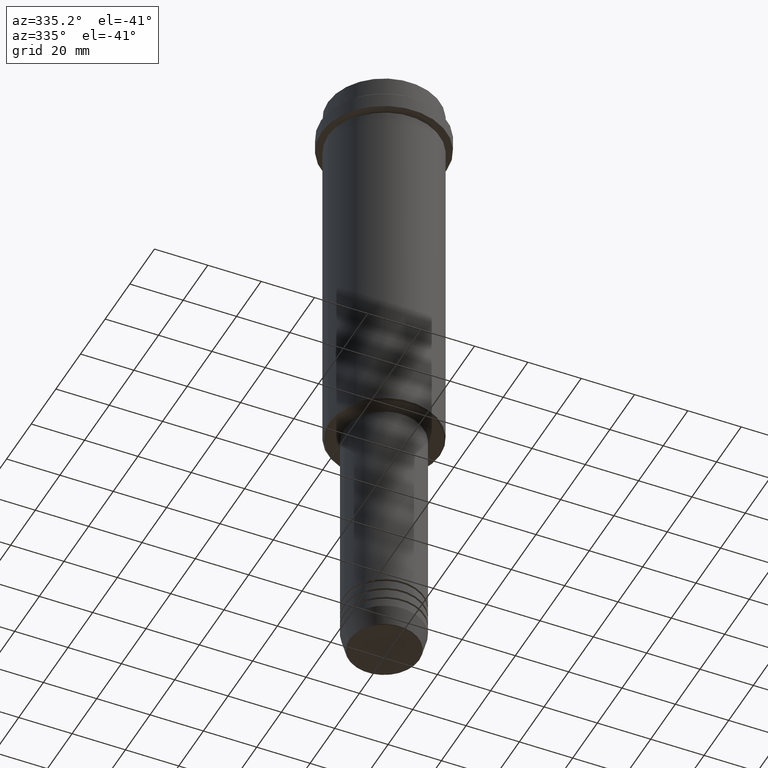
[diagram: clean part render]
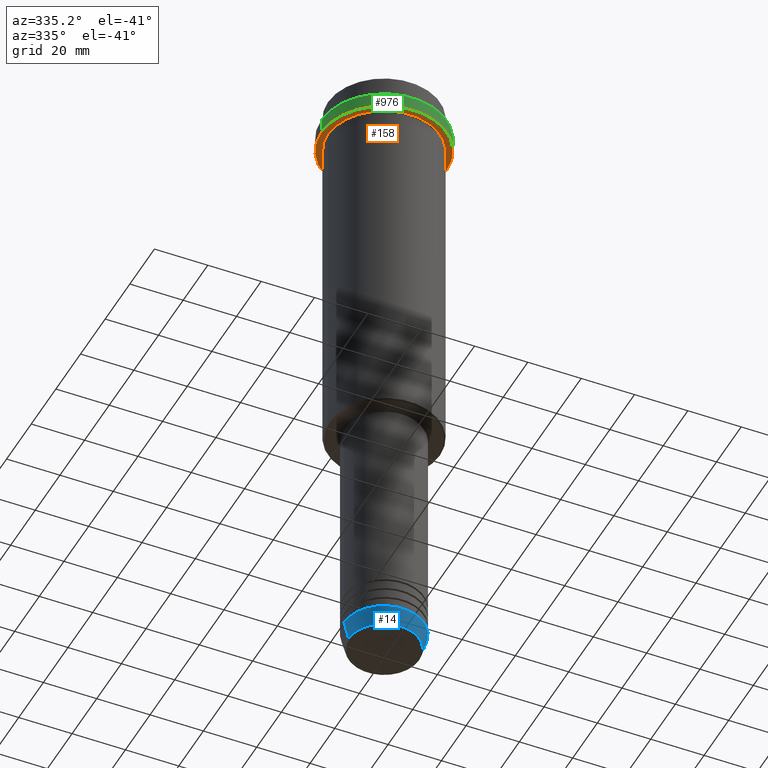
[diagram: same view with three faces highlighted in distinct colors, each labeled with its STEP entity id]
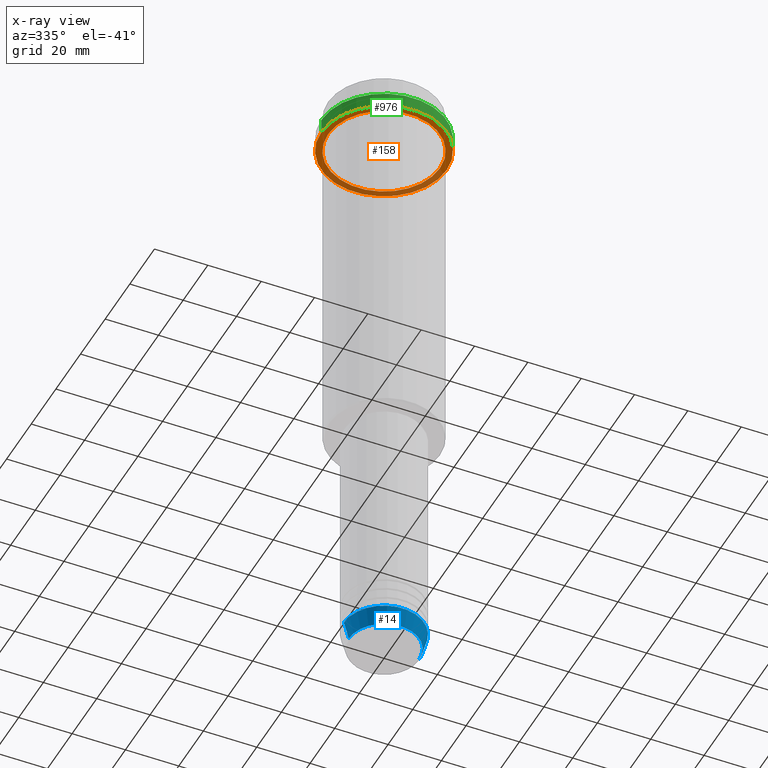
[diagram: x-ray of the same camera — body ghosted, the three highlighted faces saturated]
A machine part, auxiliary view with three faces highlighted in distinct colors.
The next image is the same camera in x-ray (body ghosted, the three faces saturated) — at least one of them is partly hidden behind the body in this view.
Their STEP definitions:

[orange] entity #158 — the highlighted planar face has unit normal (0, 0, -1).
#21 = VERTEX_POINT ( 'NONE', #610 ) ;
#50 = ORIENTED_EDGE ( 'NONE', *, *, #1210, .T. ) ;
#98 = CIRCLE ( 'NONE', #279, 23.50000000000000355 ) ;
#149 = DIRECTION ( 'NONE',  ( -1.000000000000000000, 0.000000000000000000, 0.000000000000000000 ) ) ;
#158 = ADVANCED_FACE ( 'NONE', ( #864, #974 ), #323, .T. ) ;
#222 = DIRECTION ( 'NONE',  ( -1.000000000000000000, 0.000000000000000000, 0.000000000000000000 ) ) ;
#224 = VERTEX_POINT ( 'NONE', #360 ) ;
#279 = AXIS2_PLACEMENT_3D ( 'NONE', #1177, #499, #614 ) ;
#305 = CIRCLE ( 'NONE', #1062, 20.99999999999999289 ) ;
#317 = CARTESIAN_POINT ( 'NONE',  ( 0.000000000000000000, 23.50000000000000355, -15.00000000000000178 ) ) ;
#323 = PLANE ( 'NONE',  #785 ) ;
#360 = CARTESIAN_POINT ( 'NONE',  ( 20.99999999999999289, 2.571758278209440872E-15, -15.00000000000000178 ) ) ;
#367 = CARTESIAN_POINT ( 'NONE',  ( 0.000000000000000000, 0.000000000000000000, -15.00000000000000178 ) ) ;
#429 = DIRECTION ( 'NONE',  ( -0.000000000000000000, -0.000000000000000000, 1.000000000000000000 ) ) ;
#438 = CARTESIAN_POINT ( 'NONE',  ( -20.99999999999999289, 0.000000000000000000, -15.00000000000000178 ) ) ;
#447 = DIRECTION ( 'NONE',  ( -0.000000000000000000, -0.000000000000000000, 1.000000000000000000 ) ) ;
#452 = ORIENTED_EDGE ( 'NONE', *, *, #951, .F. ) ;
#499 = DIRECTION ( 'NONE',  ( -0.000000000000000000, -0.000000000000000000, 1.000000000000000000 ) ) ;
#606 = VERTEX_POINT ( 'NONE', #720 ) ;
#610 = CARTESIAN_POINT ( 'NONE',  ( -23.50000000000000711, 2.877919977996281109E-15, -15.00000000000000000 ) ) ;
#614 = DIRECTION ( 'NONE',  ( 1.000000000000000000, 0.000000000000000000, 0.000000000000000000 ) ) ;
#617 = ORIENTED_EDGE ( 'NONE', *, *, #1145, .F. ) ;
#636 = DIRECTION ( 'NONE',  ( 1.000000000000000000, 0.000000000000000000, 0.000000000000000000 ) ) ;
#681 = EDGE_LOOP ( 'NONE', ( #50, #1392 ) ) ;
#687 = EDGE_CURVE ( 'NONE', #224, #707, #305, .T. ) ;
#707 = VERTEX_POINT ( 'NONE', #438 ) ;
#720 = CARTESIAN_POINT ( 'NONE',  ( 23.50000000000000355, 0.000000000000000000, -15.00000000000000000 ) ) ;
#784 = CIRCLE ( 'NONE', #1377, 23.50000000000000355 ) ;
#785 = AXIS2_PLACEMENT_3D ( 'NONE', #317, #1304, #1117 ) ;
#864 = FACE_BOUND ( 'NONE', #681, .T. ) ;
#906 = AXIS2_PLACEMENT_3D ( 'NONE', #367, #1123, #149 ) ;
#951 = EDGE_CURVE ( 'NONE', #21, #606, #98, .T. ) ;
#974 = FACE_OUTER_BOUND ( 'NONE', #985, .T. ) ;
#985 = EDGE_LOOP ( 'NONE', ( #617, #452 ) ) ;
#1000 = CIRCLE ( 'NONE', #906, 20.99999999999999289 ) ;
#1013 = CARTESIAN_POINT ( 'NONE',  ( 0.000000000000000000, 0.000000000000000000, -15.00000000000000178 ) ) ;
#1062 = AXIS2_PLACEMENT_3D ( 'NONE', #1013, #447, #222 ) ;
#1117 = DIRECTION ( 'NONE',  ( -1.000000000000000000, 0.000000000000000000, -0.000000000000000000 ) ) ;
#1123 = DIRECTION ( 'NONE',  ( -0.000000000000000000, -0.000000000000000000, 1.000000000000000000 ) ) ;
#1145 = EDGE_CURVE ( 'NONE', #606, #21, #784, .T. ) ;
#1177 = CARTESIAN_POINT ( 'NONE',  ( 0.000000000000000000, 0.000000000000000000, -15.00000000000000000 ) ) ;
#1210 = EDGE_CURVE ( 'NONE', #707, #224, #1000, .T. ) ;
#1216 = CARTESIAN_POINT ( 'NONE',  ( 0.000000000000000000, 0.000000000000000000, -15.00000000000000000 ) ) ;
#1304 = DIRECTION ( 'NONE',  ( 0.000000000000000000, 0.000000000000000000, -1.000000000000000000 ) ) ;
#1377 = AXIS2_PLACEMENT_3D ( 'NONE', #1216, #429, #636 ) ;
#1392 = ORIENTED_EDGE ( 'NONE', *, *, #687, .T. ) ;

[blue] entity #14 — the highlighted conical surface has half-angle 15 deg.
#14 = ADVANCED_FACE ( 'NONE', ( #181 ), #953, .T. ) ;
#69 = ORIENTED_EDGE ( 'NONE', *, *, #492, .T. ) ;
#95 = VERTEX_POINT ( 'NONE', #278 ) ;
#108 = ORIENTED_EDGE ( 'NONE', *, *, #1339, .T. ) ;
#111 = DIRECTION ( 'NONE',  ( -0.000000000000000000, -0.000000000000000000, 1.000000000000000000 ) ) ;
#146 = EDGE_CURVE ( 'NONE', #95, #1405, #907, .T. ) ;
#155 = EDGE_LOOP ( 'NONE', ( #206, #69, #108, #208 ) ) ;
#181 = FACE_OUTER_BOUND ( 'NONE', #155, .T. ) ;
#184 = VERTEX_POINT ( 'NONE', #203 ) ;
#186 = DIRECTION ( 'NONE',  ( -0.000000000000000000, -0.000000000000000000, 1.000000000000000000 ) ) ;
#197 = CARTESIAN_POINT ( 'NONE',  ( 0.000000000000000000, 0.000000000000000000, -233.0000000000000000 ) ) ;
#198 = DIRECTION ( 'NONE',  ( 0.2588190451025210725, 0.000000000000000000, 0.9659258262890680902 ) ) ;
#203 = CARTESIAN_POINT ( 'NONE',  ( 13.22365507213719127, 0.000000000000000000, -239.6294095225512706 ) ) ;
#206 = ORIENTED_EDGE ( 'NONE', *, *, #146, .F. ) ;
#208 = ORIENTED_EDGE ( 'NONE', *, *, #251, .F. ) ;
#244 = CARTESIAN_POINT ( 'NONE',  ( -15.00000000000000000, 1.836970198721029589E-15, -233.0000000000000000 ) ) ;
#251 = EDGE_CURVE ( 'NONE', #1405, #473, #575, .T. ) ;
#262 = AXIS2_PLACEMENT_3D ( 'NONE', #197, #111, #1416 ) ;
#278 = CARTESIAN_POINT ( 'NONE',  ( -13.22365507213719127, 1.728200442216588189E-15, -239.6294095225512706 ) ) ;
#329 = AXIS2_PLACEMENT_3D ( 'NONE', #1052, #831, #1251 ) ;
#375 = VECTOR ( 'NONE', #198, 1000.000000000000114 ) ;
#407 = LINE ( 'NONE', #605, #375 ) ;
#473 = VERTEX_POINT ( 'NONE', #1391 ) ;
#492 = EDGE_CURVE ( 'NONE', #95, #184, #862, .T. ) ;
#575 = CIRCLE ( 'NONE', #262, 15.00000000000000000 ) ;
#605 = CARTESIAN_POINT ( 'NONE',  ( 15.00000000000000000, 0.000000000000000000, -233.0000000000000000 ) ) ;
#680 = DIRECTION ( 'NONE',  ( -0.2588190451025210725, 3.169619151431769255E-17, 0.9659258262890680902 ) ) ;
#831 = DIRECTION ( 'NONE',  ( -0.000000000000000000, -0.000000000000000000, 1.000000000000000000 ) ) ;
#834 = VECTOR ( 'NONE', #680, 1000.000000000000114 ) ;
#862 = CIRCLE ( 'NONE', #1044, 13.22365507213719127 ) ;
#907 = LINE ( 'NONE', #244, #834 ) ;
#953 = CONICAL_SURFACE ( 'NONE', #329, 15.00000000000000000, 0.2617993877991497964 ) ;
#1044 = AXIS2_PLACEMENT_3D ( 'NONE', #1283, #186, #1291 ) ;
#1052 = CARTESIAN_POINT ( 'NONE',  ( 0.000000000000000000, 0.000000000000000000, -233.0000000000000000 ) ) ;
#1174 = CARTESIAN_POINT ( 'NONE',  ( -15.00000000000000000, 1.836970198721029589E-15, -233.0000000000000000 ) ) ;
#1251 = DIRECTION ( 'NONE',  ( 1.000000000000000000, 0.000000000000000000, 0.000000000000000000 ) ) ;
#1283 = CARTESIAN_POINT ( 'NONE',  ( 0.000000000000000000, 0.000000000000000000, -239.6294095225512706 ) ) ;
#1291 = DIRECTION ( 'NONE',  ( 1.000000000000000000, 0.000000000000000000, 0.000000000000000000 ) ) ;
#1339 = EDGE_CURVE ( 'NONE', #184, #473, #407, .T. ) ;
#1391 = CARTESIAN_POINT ( 'NONE',  ( 15.00000000000000000, 0.000000000000000000, -233.0000000000000000 ) ) ;
#1405 = VERTEX_POINT ( 'NONE', #1174 ) ;
#1416 = DIRECTION ( 'NONE',  ( 1.000000000000000000, 0.000000000000000000, 0.000000000000000000 ) ) ;

[green] entity #976 — the highlighted cylindrical surface (partial cylindrical patch) has radius 23.5 mm, axis along (-0, -0, 1).
#12 = EDGE_LOOP ( 'NONE', ( #134, #878, #1327, #1389 ) ) ;
#21 = VERTEX_POINT ( 'NONE', #610 ) ;
#30 = CIRCLE ( 'NONE', #506, 23.50000000000000000 ) ;
#85 = DIRECTION ( 'NONE',  ( 1.000000000000000000, 0.000000000000000000, 0.000000000000000000 ) ) ;
#90 = DIRECTION ( 'NONE',  ( -0.000000000000000000, -0.000000000000000000, 1.000000000000000000 ) ) ;
#98 = CIRCLE ( 'NONE', #279, 23.50000000000000355 ) ;
#115 = EDGE_CURVE ( 'NONE', #606, #768, #1163, .T. ) ;
#134 = ORIENTED_EDGE ( 'NONE', *, *, #592, .F. ) ;
#138 = DIRECTION ( 'NONE',  ( 0.000000000000000000, 0.000000000000000000, -1.000000000000000000 ) ) ;
#180 = EDGE_CURVE ( 'NONE', #768, #228, #30, .T. ) ;
#187 = CARTESIAN_POINT ( 'NONE',  ( 23.50000000000000000, 0.000000000000000000, 0.000000000000000000 ) ) ;
#228 = VERTEX_POINT ( 'NONE', #539 ) ;
#279 = AXIS2_PLACEMENT_3D ( 'NONE', #1177, #499, #614 ) ;
#468 = CARTESIAN_POINT ( 'NONE',  ( 23.50000000000000000, 0.000000000000000000, -9.500000000000000000 ) ) ;
#494 = CYLINDRICAL_SURFACE ( 'NONE', #1374, 23.50000000000000000 ) ;
#499 = DIRECTION ( 'NONE',  ( -0.000000000000000000, -0.000000000000000000, 1.000000000000000000 ) ) ;
#506 = AXIS2_PLACEMENT_3D ( 'NONE', #1393, #138, #85 ) ;
#527 = LINE ( 'NONE', #1057, #668 ) ;
#539 = CARTESIAN_POINT ( 'NONE',  ( -23.50000000000000000, 2.877919977996280320E-15, -9.500000000000000000 ) ) ;
#592 = EDGE_CURVE ( 'NONE', #21, #228, #527, .T. ) ;
#599 = VECTOR ( 'NONE', #1150, 1000.000000000000000 ) ;
#606 = VERTEX_POINT ( 'NONE', #720 ) ;
#610 = CARTESIAN_POINT ( 'NONE',  ( -23.50000000000000711, 2.877919977996281109E-15, -15.00000000000000000 ) ) ;
#614 = DIRECTION ( 'NONE',  ( 1.000000000000000000, 0.000000000000000000, 0.000000000000000000 ) ) ;
#631 = CARTESIAN_POINT ( 'NONE',  ( 0.000000000000000000, 0.000000000000000000, 0.000000000000000000 ) ) ;
#668 = VECTOR ( 'NONE', #90, 1000.000000000000000 ) ;
#720 = CARTESIAN_POINT ( 'NONE',  ( 23.50000000000000355, 0.000000000000000000, -15.00000000000000000 ) ) ;
#737 = FACE_OUTER_BOUND ( 'NONE', #12, .T. ) ;
#768 = VERTEX_POINT ( 'NONE', #468 ) ;
#827 = DIRECTION ( 'NONE',  ( 1.000000000000000000, 0.000000000000000000, 0.000000000000000000 ) ) ;
#878 = ORIENTED_EDGE ( 'NONE', *, *, #951, .T. ) ;
#951 = EDGE_CURVE ( 'NONE', #21, #606, #98, .T. ) ;
#960 = DIRECTION ( 'NONE',  ( -0.000000000000000000, -0.000000000000000000, 1.000000000000000000 ) ) ;
#976 = ADVANCED_FACE ( 'NONE', ( #737 ), #494, .T. ) ;
#1057 = CARTESIAN_POINT ( 'NONE',  ( -23.50000000000000000, 2.877919977996280320E-15, 0.000000000000000000 ) ) ;
#1150 = DIRECTION ( 'NONE',  ( -0.000000000000000000, -0.000000000000000000, 1.000000000000000000 ) ) ;
#1163 = LINE ( 'NONE', #187, #599 ) ;
#1177 = CARTESIAN_POINT ( 'NONE',  ( 0.000000000000000000, 0.000000000000000000, -15.00000000000000000 ) ) ;
#1327 = ORIENTED_EDGE ( 'NONE', *, *, #115, .T. ) ;
#1374 = AXIS2_PLACEMENT_3D ( 'NONE', #631, #960, #827 ) ;
#1389 = ORIENTED_EDGE ( 'NONE', *, *, #180, .T. ) ;
#1393 = CARTESIAN_POINT ( 'NONE',  ( 0.000000000000000000, 0.000000000000000000, -9.500000000000000000 ) ) ;